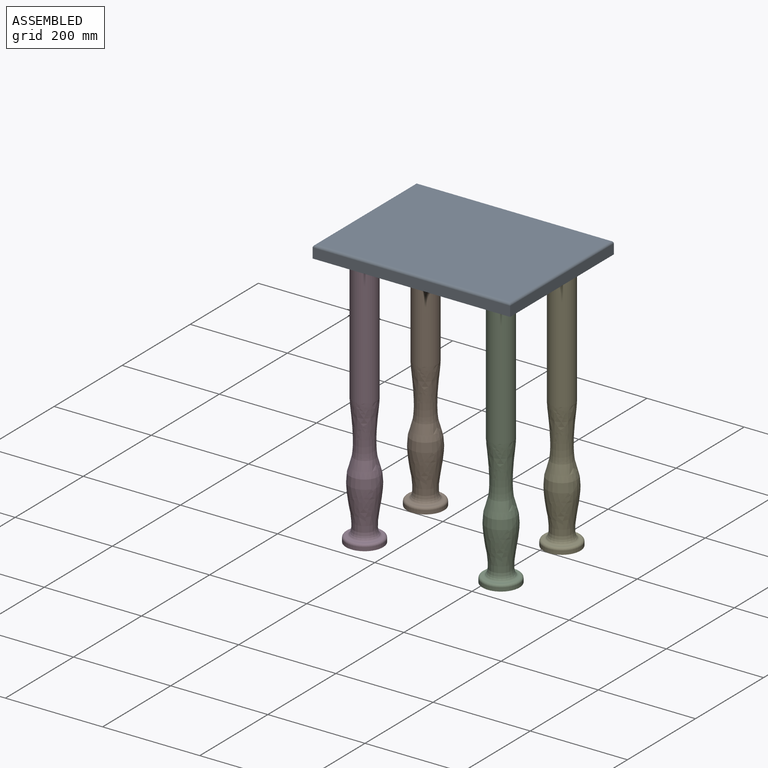
[diagram: assembled view]
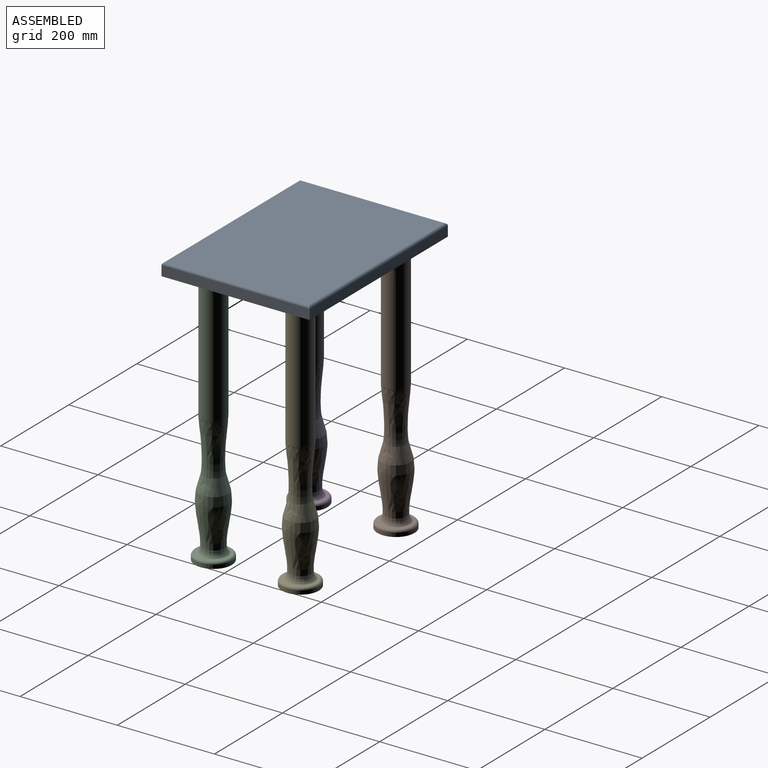
[diagram: assembled view, second angle]
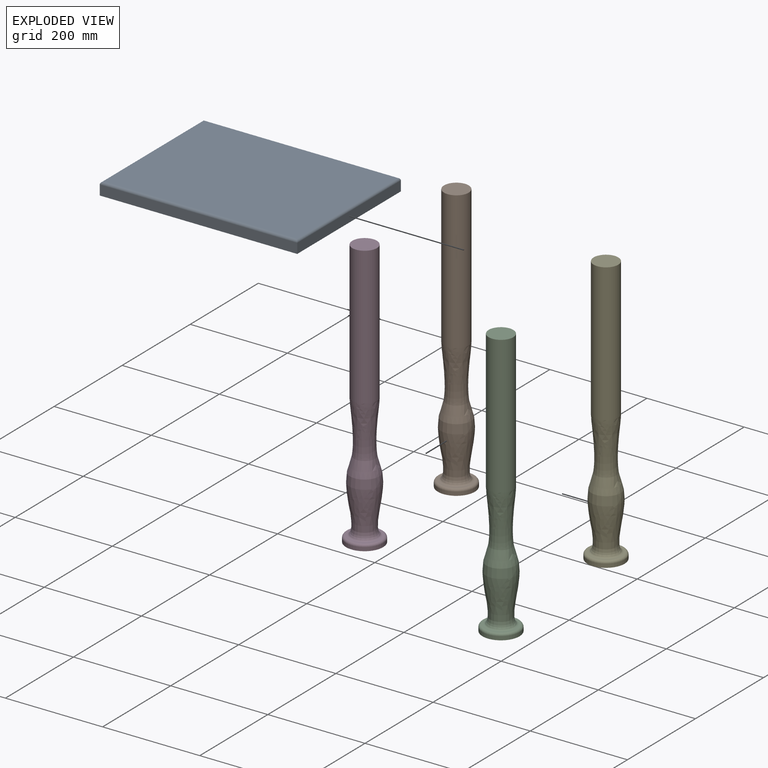
[diagram: exploded view]
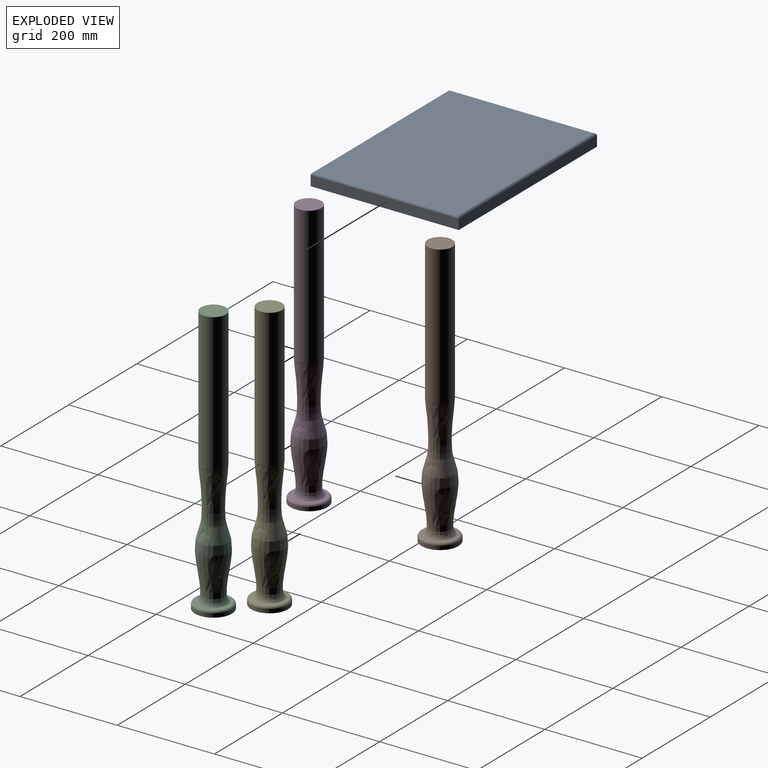
[diagram: exploded view, second angle]
ASSEMBLY  parts=5 mates=4
PART A: 18 faces, bbox 406.4x304.8x25.4 mm
  f0: plane 406.4x304.8mm, normal (0,0,-1), area 115763.4mm2, adj f1,f2,f3,f4,f10,f12,f14,f16
  f1: plane 304.8x20.32mm, normal (-1,0,0), area 6193.5mm2, adj f0,f2,f4,f6
  f2: plane 406.4x20.32mm, normal (0,-1,0), area 8258mm2, adj f0,f1,f3,f8
  f3: plane 304.8x20.32mm, normal (1,0,0), area 6193.5mm2, adj f0,f2,f4,f9
  f4: plane 406.4x20.32mm, normal (0,1,0), area 8258mm2, adj f0,f1,f3,f7
  f5: plane 396.24x294.64mm, normal (0,0,1), area 116748.2mm2, adj f6,f7,f8,f9
  f6: cylinder r=5.08mm len=304.8mm, axis (0,-1,0), area 2402.7mm2, adj f1,f5,f7,f8
  f7: cylinder r=5.08mm len=406.4mm, axis (-1,0,0), area 3213.5mm2, adj f4,f5,f6,f9
  f8: cylinder r=5.08mm len=406.4mm, axis (1,0,0), area 3213.5mm2, adj f2,f5,f6,f9
  f9: cylinder r=5.08mm len=304.8mm, axis (0,1,0), area 2402.7mm2, adj f3,f5,f7,f8
  f10: cylinder r=25.4mm len=50.8mm, axis (0,0,-1), area 3040.2mm2, adj f0,f11
  f11: plane 50.8x50.8mm, normal (0,0,-1), area 2026.8mm2, adj f10
  f12: cylinder r=25.4mm len=50.8mm, axis (0,0,-1), area 3040.2mm2, adj f0,f13
  f13: plane 50.8x50.8mm, normal (0,0,-1), area 2026.8mm2, adj f12
  f14: cylinder r=25.4mm len=50.8mm, axis (0,0,-1), area 3040.2mm2, adj f0,f15
  f15: plane 50.8x50.8mm, normal (0,0,-1), area 2026.8mm2, adj f14
  f16: cylinder r=25.4mm len=50.8mm, axis (0,0,-1), area 3040.2mm2, adj f0,f17
  f17: plane 50.8x50.8mm, normal (0,0,-1), area 2026.8mm2, adj f16
PART B: 9 faces, bbox 82.5x82.5x553 mm
  f0: revolved ~127x53.02mm, area 17731.9mm2, adj f1,f8
  f1: revolved ~127x62.88mm, area 22095.7mm2, adj f0,f2
  f2: torus R=30.48mm, axis (0,0,1), area 811.9mm2, adj f1,f3
  f3: plane 66.04x66.04mm, normal (0,0,1), area 506.7mm2, adj f2,f4
  f4: torus R=33.02mm, axis (0,0,1), area 1817.7mm2, adj f3,f5
  f5: cylinder r=38.1mm len=76.2mm, axis (0,0,1), area 1824.1mm2, adj f4,f6
  f6: plane 76.2x76.2mm, normal (0,0,-1), area 4560.4mm2, adj f5
  f7: plane 50.8x50.8mm, normal (0,0,1), area 2026.8mm2, adj f8
  f8: cylinder r=25.4mm len=284.37mm, axis (0,0,1), area 45384mm2, adj f0,f7
PART C: same geometry as B
PART D: same geometry as B
PART E: same geometry as B
PLACE A t=(4.12,-31.46,-38.06)mm fixed
PLACE B t=(-169.2,58.08,-328.78)mm
PLACE C t=(111.48,-121,-328.78)mm
PLACE D t=(-169.2,-121,-328.78)mm
PLACE E t=(111.48,58.08,-328.78)mm
MATE fastened B.f2 <-> A.f14  axis (0,0,1) through (-136.22,58.08,-44.41)mm
MATE fastened C.f2 <-> A.f16  axis (0,0,1) through (144.46,-121,-44.41)mm
MATE fastened E.f2 <-> A.f12  axis (0,0,1) through (144.46,58.08,-44.41)mm
MATE fastened D.f2 <-> A.f10  axis (0,0,1) through (-136.22,-121,-44.41)mm
